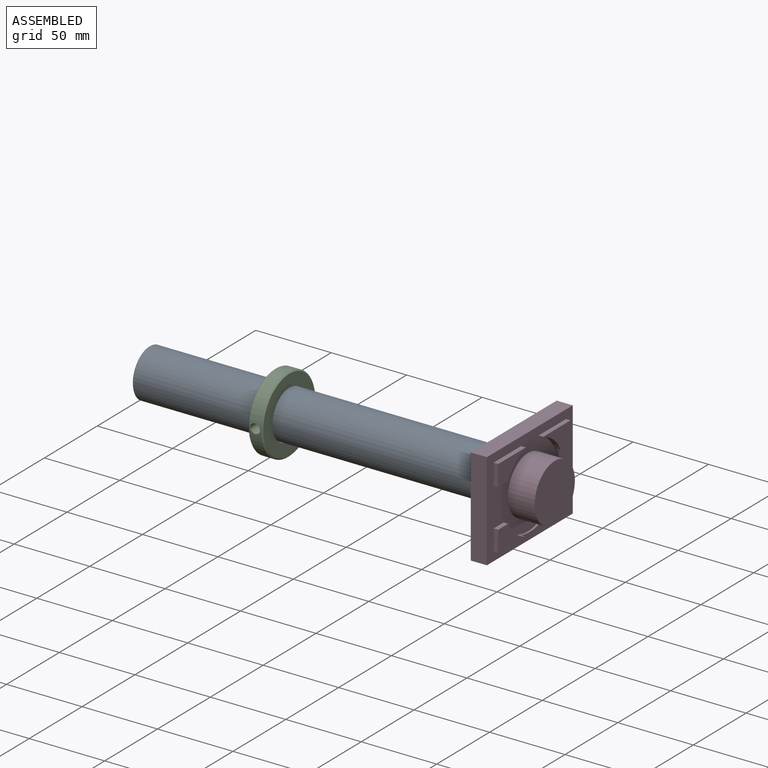
[diagram: assembled view]
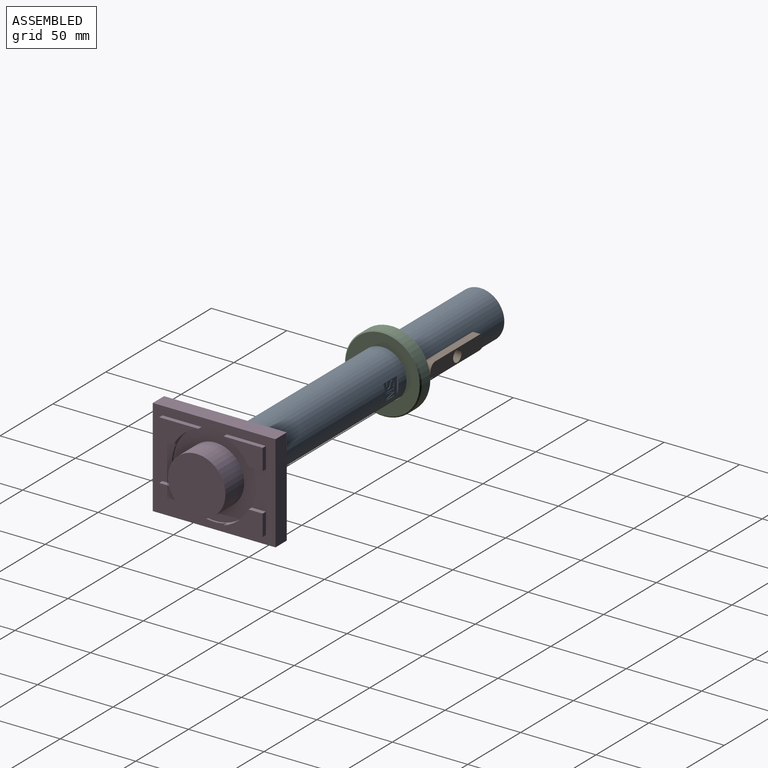
[diagram: assembled view, second angle]
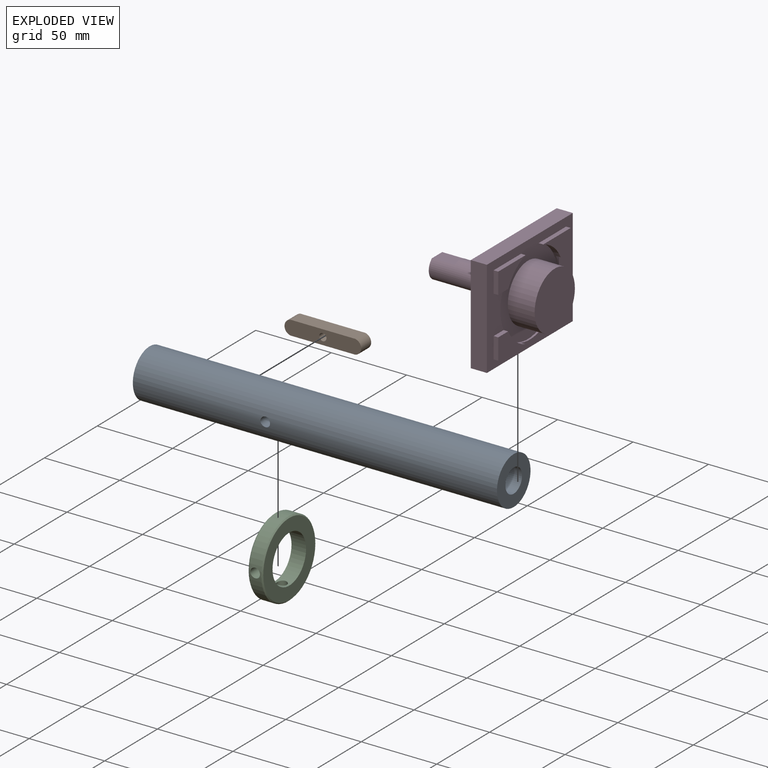
[diagram: exploded view]
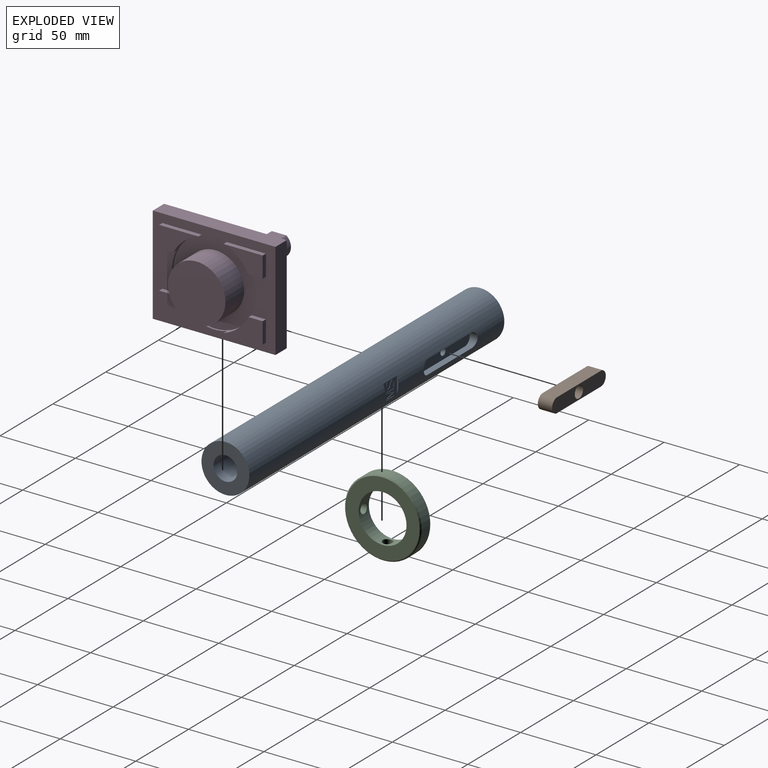
[diagram: exploded view, second angle]
ASSEMBLY  parts=4 mates=3
PART A: 61 faces, bbox 241.3x31.8x31.8 mm
  f0: cylinder r=7.87mm len=50.8mm, axis (1,0,0), area 2354.9mm2, adj f1,f4,f59,f60
  f1: plane 15.75x14.1mm, normal (1,0,0), area 183.9mm2, adj f0,f59
  f2: plane 12.7x11.18mm, normal (0,1,0), area 105.7mm2, adj f3,f15,f16,f17,f18,f19,f20,f21
  f3: cylinder r=15.88mm len=241.3mm, axis (-1,0,0), area 23390.6mm2, adj f2,f4,f5,f6,f7,f8,f9,f13
  f4: plane 31.75x31.75mm, normal (1,0,0), area 597mm2, adj f0,f3
  f5: plane 31.75x31.75mm, normal (-1,0,0), area 791.7mm2, adj f3
  f6: plane 42.57x4.36mm, normal (0,0,-1), area 185.5mm2, adj f3,f7,f9,f10
  f7: cylinder r=4.78mm len=9.47mm, axis (0,1,0), area 65mm2, adj f3,f6,f8,f10
  f8: plane 42.57x4.36mm, normal (0,0,1), area 185.5mm2, adj f3,f7,f9,f10
  f9: cylinder r=4.78mm len=9.47mm, axis (0,1,0), area 65mm2, adj f3,f6,f8,f10
  f10: plane 50.8x9.47mm, normal (0,1,0), area 444.2mm2, adj f6,f7,f8,f9,f11
  f11: cylinder r=2.41mm len=19.05mm, axis (0,1,0), area 288.8mm2, adj f10,f12
  f12: plane 4.83x4.83mm, normal (0,1,0), area 18.3mm2, adj f11
  f13: cylinder r=3.17mm len=6.35mm, axis (0,0,-1), area 77.9mm2, adj f3,f14
  f14: plane 6.35x6.35mm, normal (0,0,-1), area 31.7mm2, adj f13
  f15: plane 11.18x1.02mm, normal (-1,0,0), area 7.6mm2, adj f2,f3
  f16: plane 11.18x1.02mm, normal (1,0,0), area 7.6mm2, adj f2,f3
  f17: plane 0.92x0.25mm, normal (0,0,1), area 0.2mm2, adj f2,f18,f36,f37
  f18: extruded ~2.14x0.36mm, area 0.6mm2, adj f2,f17,f19,f37
  f19: extruded ~2.03x0.57mm, area 0.5mm2, adj f2,f18,f20,f37
  f20: extruded ~1.56x0.72mm, area 0.5mm2, adj f2,f19,f21,f37
  f21: extruded ~1.24x0.43mm, area 0.3mm2, adj f2,f20,f22,f37
  f22: extruded ~1.7x0.94mm, area 0.5mm2, adj f2,f21,f23,f37
  f23: extruded ~1.4x0.69mm, area 0.4mm2, adj f2,f22,f24,f37
  f24: extruded ~0.85x0.34mm, area 0.2mm2, adj f2,f23,f25,f37
  f25: extruded ~1.51x1.08mm, area 0.5mm2, adj f2,f24,f26,f37
  f26: extruded ~1.86x0.4mm, area 0.5mm2, adj f2,f25,f27,f37
  f27: plane 0.85x0.33mm, normal (0.36,0,-0.93), area 0.2mm2, adj f2,f26,f28,f37
  f28: extruded ~2.15x0.4mm, area 0.6mm2, adj f2,f27,f29,f37
  f29: extruded ~1.82x0.51mm, area 0.5mm2, adj f2,f28,f30,f37
  f30: extruded ~1.41x0.66mm, area 0.4mm2, adj f2,f29,f31,f37
  f31: extruded ~1.36x0.47mm, area 0.4mm2, adj f2,f30,f32,f37
  f32: extruded ~1.54x0.9mm, area 0.5mm2, adj f2,f31,f33,f37
  f33: extruded ~1.48x0.69mm, area 0.4mm2, adj f2,f32,f34,f37
  f34: extruded ~0.83x0.36mm, area 0.2mm2, adj f2,f33,f35,f37
  f35: extruded ~1.81x1.24mm, area 0.6mm2, adj f2,f34,f36,f37
  f36: extruded ~2.14x0.44mm, area 0.6mm2, adj f2,f17,f35,f37
  f37: plane 7.77x4.89mm, normal (0,1,0), area 14.4mm2, adj f17,f18,f19,f20,f21,f22,f23,f24
  f38: plane 0.8x0.25mm, normal (1,0,0), area 0.2mm2, adj f2,f39,f55,f56
  f39: plane 6.61x1.44mm, normal (0.21,0,-0.98), area 1.7mm2, adj f2,f38,f40,f56
  f40: plane 0.25x0.04mm, normal (1,0,0), area 0mm2, adj f2,f39,f41,f56
  f41: extruded ~2.1x0.25mm, area 0.5mm2, adj f2,f40,f42,f56
  f42: plane 4.52x0.25mm, normal (0,0,1), area 1.1mm2, adj f2,f41,f43,f56
  f43: plane 0.78x0.25mm, normal (1,0,0), area 0.2mm2, adj f2,f42,f44,f56
  f44: plane 7.56x0.25mm, normal (0,0,-1), area 1.9mm2, adj f2,f43,f45,f56
  f45: plane 1.28x0.25mm, normal (-1,0,0), area 0.3mm2, adj f2,f44,f46,f56
  f46: plane 6.16x1.28mm, normal (-0.2,0,0.98), area 1.6mm2, adj f2,f45,f47,f56
  f47: plane 0.25x0.03mm, normal (-1,0,0), area 0mm2, adj f2,f46,f48,f56
  f48: plane 6.16x1.29mm, normal (-0.21,0,-0.98), area 1.6mm2, adj f2,f47,f49,f56
  f49: plane 1.3x0.25mm, normal (-1,0,0), area 0.3mm2, adj f2,f48,f50,f56
  f50: plane 7.56x0.25mm, normal (0,0,1), area 1.9mm2, adj f2,f49,f51,f56
  f51: plane 0.79x0.25mm, normal (1,0,0), area 0.2mm2, adj f2,f50,f52,f56
  f52: plane 4.58x0.25mm, normal (0,0,-1), area 1.2mm2, adj f2,f51,f53,f56
  f53: extruded ~2.02x0.25mm, area 0.5mm2, adj f2,f52,f54,f56
  f54: plane 0.25x0.04mm, normal (1,0,0), area 0mm2, adj f2,f53,f55,f56
  f55: plane 6.6x1.46mm, normal (0.22,0,0.98), area 1.7mm2, adj f2,f38,f54,f56
  f56: plane 7.56x5.18mm, normal (0,1,0), area 21.9mm2, adj f38,f39,f40,f41,f42,f43,f44,f45
  f57: cylinder r=3.17mm len=8.67mm, axis (0,-1,0), area 163mm2, adj f3,f58
  f58: cylinder r=7.87mm len=6.35mm, axis (1,0,0), area 32.4mm2, adj f57
  f59: plane 15.24x9.65mm, normal (0,0,-1), area 147.1mm2, adj f0,f1,f60
  f60: plane 9.65x1.65mm, normal (1,0,0), area 10.9mm2, adj f0,f59
PART B: 9 faces, bbox 50.8x9.5x9.5 mm
  f0: plane 42.57x9.49mm, normal (0,1,0), area 403.8mm2, adj f1,f3,f4,f5
  f1: cylinder r=4.78mm len=9.49mm, axis (0,0,-1), area 129.9mm2, adj f0,f2,f4,f5
  f2: plane 42.57x9.49mm, normal (0,-1,0), area 403.8mm2, adj f1,f3,f4,f5
  f3: cylinder r=4.78mm len=9.49mm, axis (0,0,-1), area 129.9mm2, adj f0,f2,f4,f5
  f4: plane 50.8x9.47mm, normal (0,0,1), area 444.2mm2, adj f0,f1,f2,f3,f8
  f5: plane 50.8x9.47mm, normal (0,0,-1), area 413.8mm2, adj f0,f1,f2,f3,f6
  f6: cylinder r=3.94mm len=7.87mm, axis (0,0,-1), area 129.7mm2, adj f5,f7
  f7: plane 7.87x7.87mm, normal (0,0,-1), area 30.4mm2, adj f6,f8
  f8: cylinder r=2.41mm len=4.83mm, axis (0,0,-1), area 64.3mm2, adj f4,f7
PART C: 8 faces, bbox 9.7x50.8x50.8 mm
  f0: cylinder r=15.88mm len=31.75mm, axis (-1,0,0), area 898.9mm2, adj f2,f3,f5,f6
  f1: cylinder r=25.4mm len=50.8mm, axis (-1,0,0), area 1233.9mm2, adj f4,f5,f6,f7
  f2: plane 49.28x49.28mm, normal (1,0,0), area 1115.3mm2, adj f0,f4
  f3: plane 49.28x49.28mm, normal (-1,0,0), area 1115.3mm2, adj f0,f7
  f4: cone r=24.64mm half-angle=45deg, axis (-1,0,0), area 169.4mm2, adj f1,f2
  f5: cylinder r=3.17mm len=9.85mm, axis (0,-1,0), area 191.2mm2, adj f0,f1
  f6: cylinder r=3.17mm len=9.85mm, axis (0,0,1), area 191.2mm2, adj f0,f1
  f7: cone r=25.4mm half-angle=45deg, axis (1,0,0), area 169.4mm2, adj f1,f3
PART D: 30 faces, bbox 81.3x64.8x78 mm
  f0: plane 15.75x14.1mm, normal (0,0,-1), area 183.9mm2, adj f27,f28
  f1: plane 81.28x64.77mm, normal (0,0,1), area 1951.2mm2, adj f2,f3,f4,f5,f7,f8,f9,f10
  f2: plane 81.28x10.67mm, normal (0,1,0), area 867.1mm2, adj f1,f3,f5,f6
  f3: plane 64.77x10.67mm, normal (-1,0,0), area 691mm2, adj f1,f2,f4,f6
  f4: plane 81.28x10.67mm, normal (0,-1,0), area 867.1mm2, adj f1,f3,f5,f6
  f5: plane 64.77x10.67mm, normal (1,0,0), area 691mm2, adj f1,f2,f4,f6
  f6: plane 81.28x64.77mm, normal (0,0,-1), area 5069.7mm2, adj f2,f3,f4,f5,f27
  f7: cylinder r=27.94mm len=55.88mm, axis (0,0,-1), area 494.2mm2, adj f1,f8,f10,f11,f12,f14,f15,f17
  f8: plane 25.96x3.05mm, normal (0,1,0), area 79.1mm2, adj f1,f7,f9,f11
  f9: plane 13.97x3.05mm, normal (-1,0,0), area 42.6mm2, adj f1,f8,f10,f11
  f10: plane 9.4x3.05mm, normal (0,-1,0), area 28.7mm2, adj f1,f7,f9,f11
  f11: plane 25.96x13.97mm, normal (0,0,1), area 215.2mm2, adj f7,f8,f9,f10
  f12: plane 9.4x3.05mm, normal (0,1,0), area 28.7mm2, adj f1,f7,f13,f15
  f13: plane 13.97x3.05mm, normal (-1,0,0), area 42.6mm2, adj f1,f12,f14,f15
  f14: plane 25.96x3.05mm, normal (0,-1,0), area 79.1mm2, adj f1,f7,f13,f15
  f15: plane 25.96x13.97mm, normal (0,0,1), area 215.2mm2, adj f7,f12,f13,f14
  f16: plane 13.97x3.05mm, normal (1,0,0), area 42.6mm2, adj f1,f17,f18,f19
  f17: plane 25.96x3.05mm, normal (0,1,0), area 79.1mm2, adj f1,f7,f16,f19
  f18: plane 9.4x3.05mm, normal (0,-1,0), area 28.7mm2, adj f1,f7,f16,f19
  f19: plane 25.96x13.97mm, normal (0,0,1), area 215.2mm2, adj f7,f16,f17,f18
  f20: plane 9.4x3.05mm, normal (0,1,0), area 28.7mm2, adj f1,f7,f22,f23
  f21: plane 25.96x3.05mm, normal (0,-1,0), area 79.1mm2, adj f1,f7,f22,f23
  f22: plane 13.97x3.05mm, normal (1,0,0), area 42.6mm2, adj f1,f20,f21,f23
  f23: plane 25.96x13.97mm, normal (0,0,1), area 215.2mm2, adj f7,f20,f21,f22
  f24: plane 55.88x55.88mm, normal (0,0,1), area 1312.4mm2, adj f7,f25
  f25: cylinder r=19.05mm len=38.1mm, axis (0,0,-1), area 2128.2mm2, adj f24,f26
  f26: plane 38.1x38.1mm, normal (0,0,1), area 1140.1mm2, adj f25
  f27: cylinder r=7.87mm len=50.8mm, axis (0,0,1), area 2354.9mm2, adj f0,f6,f28,f29
  f28: plane 15.24x9.65mm, normal (0,1,0), area 147.1mm2, adj f0,f27,f29
  f29: plane 9.65x1.65mm, normal (0,0,-1), area 10.9mm2, adj f27,f28
PLACE A t=(-222.55,167.56,93.92)mm
PLACE B rot(axis=(1,0,0),90deg) t=(-171.75,187.84,93.92)mm
PLACE C rot(axis=(1,0,0),90deg) t=(-139.62,167.56,93.51)mm
PLACE D rot(axis=(0.58,0.58,0.58),120deg) t=(18.75,167.56,93.92)mm
MATE fastened A.f9 <-> B.f3  axis (0,1,0) through (-151.14,178.35,93.92)mm
MATE fastened C.f5 <-> A.f13  axis (0,0,-1) through (-134.8,167.56,78.02)mm
MATE fastened A.f59 <-> D.f28  axis (0,0,-1) through (-24.43,167.56,100.14)mm
